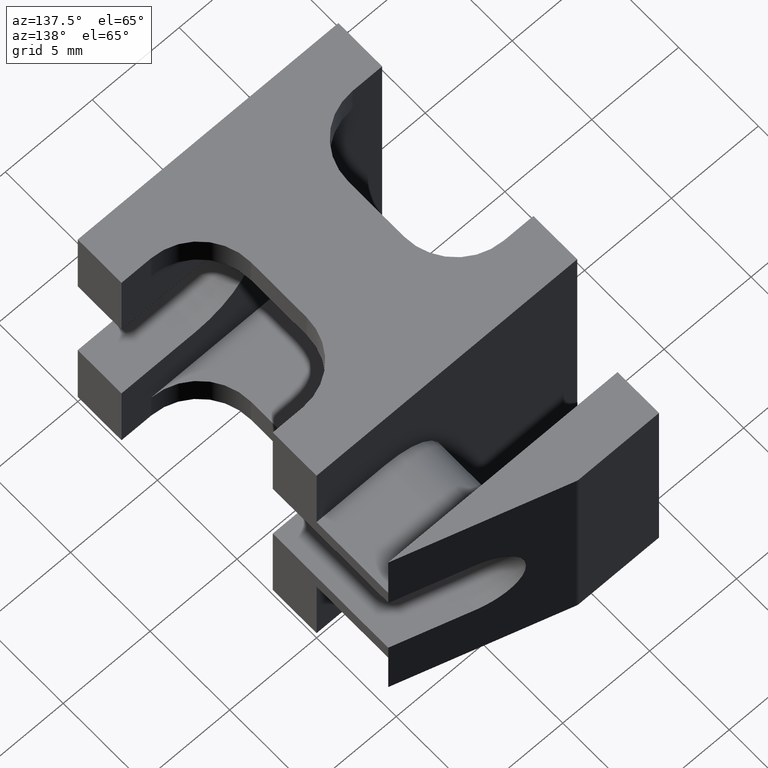
[diagram: clean part render]
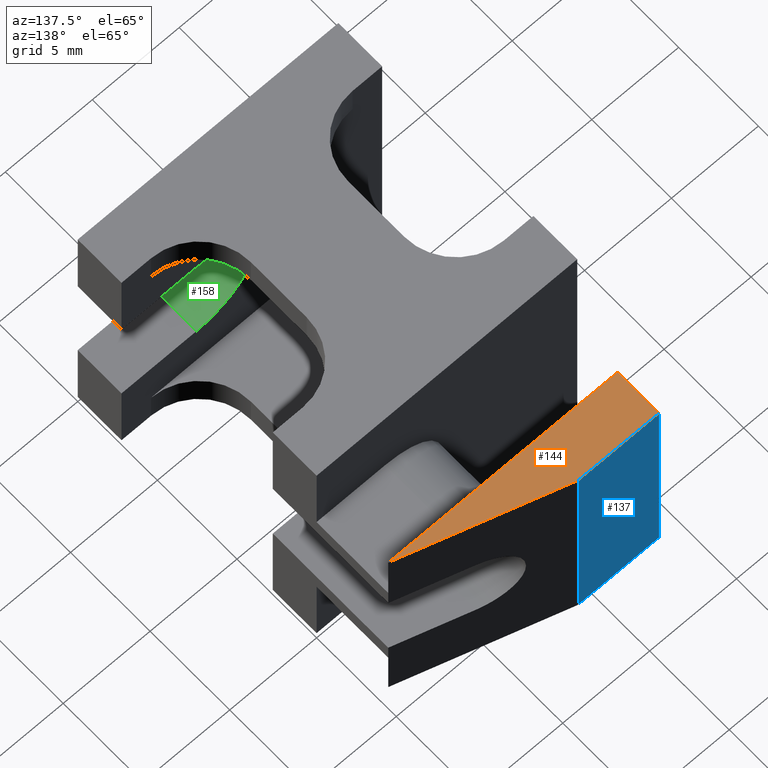
[diagram: same view with three faces highlighted in distinct colors, each labeled with its STEP entity id]
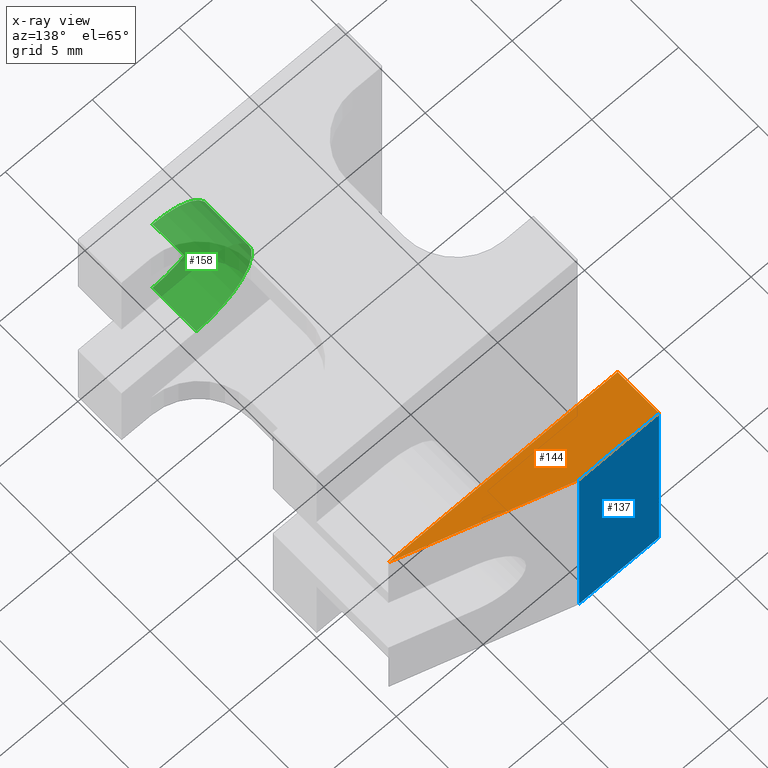
[diagram: x-ray of the same camera — body ghosted, the three highlighted faces saturated]
A machine part, auxiliary view with three faces highlighted in distinct colors.
The next image is the same camera in x-ray (body ghosted, the three faces saturated) — at least one of them is partly hidden behind the body in this view.
Their STEP definitions:

[orange] entity #144 — the highlighted planar face has unit normal (0, 0, 1).
#10 = EDGE_CURVE ( 'NONE', #729, #721, #779, .T. ) ;
#13 = EDGE_CURVE ( 'NONE', #729, #738, #799, .T. ) ;
#59 = EDGE_CURVE ( 'NONE', #700, #677, #940, .T. ) ;
#60 = EDGE_CURVE ( 'NONE', #738, #700, #1147, .T. ) ;
#114 = EDGE_CURVE ( 'NONE', #721, #677, #1097, .T. ) ;
#144 = ADVANCED_FACE ( 'NONE', ( #320 ), #290, .T. ) ;
#281 = DIRECTION ( 'NONE',  ( 1.000000000000000000, 0.0000000000000000000, -0.0000000000000000000 ) ) ;
#290 = PLANE ( 'NONE',  #1313 ) ;
#291 = DIRECTION ( 'NONE',  ( 0.0000000000000000000, 0.0000000000000000000, 1.000000000000000000 ) ) ;
#310 = CARTESIAN_POINT ( 'NONE',  ( 1.799999999999996000, 23.52439024390243500, 14.20000000000000100 ) ) ;
#320 = FACE_OUTER_BOUND ( 'NONE', #423, .T. ) ;
#423 = EDGE_LOOP ( 'NONE', ( #542, #504, #528, #531, #494 ) ) ;
#494 = ORIENTED_EDGE ( 'NONE', *, *, #10, .F. ) ;
#504 = ORIENTED_EDGE ( 'NONE', *, *, #60, .T. ) ;
#528 = ORIENTED_EDGE ( 'NONE', *, *, #59, .T. ) ;
#531 = ORIENTED_EDGE ( 'NONE', *, *, #114, .F. ) ;
#542 = ORIENTED_EDGE ( 'NONE', *, *, #13, .T. ) ;
#677 = VERTEX_POINT ( 'NONE', #1462 ) ;
#700 = VERTEX_POINT ( 'NONE', #1375 ) ;
#721 = VERTEX_POINT ( 'NONE', #1357 ) ;
#729 = VERTEX_POINT ( 'NONE', #1385 ) ;
#738 = VERTEX_POINT ( 'NONE', #1323 ) ;
#773 = DIRECTION ( 'NONE',  ( -1.000000000000000000, -0.0000000000000000000, -0.0000000000000000000 ) ) ;
#779 = LINE ( 'NONE', #780, #1115 ) ;
#780 = CARTESIAN_POINT ( 'NONE',  ( 14.99999999999999600, 19.50000000000000000, 14.20000000000000100 ) ) ;
#789 = CARTESIAN_POINT ( 'NONE',  ( 14.99999999999999600, 19.50000000000000000, 14.20000000000000100 ) ) ;
#793 = DIRECTION ( 'NONE',  ( -0.9565324958237141400, 0.2916257609218639300, 0.0000000000000000000 ) ) ;
#799 = LINE ( 'NONE', #789, #1116 ) ;
#940 = LINE ( 'NONE', #978, #1184 ) ;
#941 = DIRECTION ( 'NONE',  ( 0.0000000000000000000, 0.0000000000000000000, 1.000000000000000000 ) ) ;
#958 = CARTESIAN_POINT ( 'NONE',  ( 6.397473826388180700, 21.59999999999999800, 14.20000000000000100 ) ) ;
#968 = DIRECTION ( 'NONE',  ( 1.000000000000000000, 0.0000000000000000000, 0.0000000000000000000 ) ) ;
#974 = DIRECTION ( 'NONE',  ( -1.000000000000000000, 0.0000000000000000000, 0.0000000000000000000 ) ) ;
#978 = CARTESIAN_POINT ( 'NONE',  ( 1.799999999999996000, 22.09999999999999800, 14.20000000000000100 ) ) ;
#1077 = CARTESIAN_POINT ( 'NONE',  ( 1.799999999999996000, 19.50000000000000000, 14.20000000000000100 ) ) ;
#1097 = LINE ( 'NONE', #1077, #1212 ) ;
#1110 = DIRECTION ( 'NONE',  ( 0.0000000000000000000, 1.000000000000000000, -0.0000000000000000000 ) ) ;
#1115 = VECTOR ( 'NONE', #773, 1000.000000000000000 ) ;
#1116 = VECTOR ( 'NONE', #793, 1000.000000000000100 ) ;
#1147 = CIRCLE ( 'NONE', #1187, 0.5000000000000004400 ) ;
#1184 = VECTOR ( 'NONE', #974, 1000.000000000000000 ) ;
#1187 = AXIS2_PLACEMENT_3D ( 'NONE', #958, #941, #968 ) ;
#1212 = VECTOR ( 'NONE', #1110, 1000.000000000000000 ) ;
#1313 = AXIS2_PLACEMENT_3D ( 'NONE', #310, #291, #281 ) ;
#1323 = CARTESIAN_POINT ( 'NONE',  ( 6.543286706849112700, 22.07826624791185200, 14.20000000000000100 ) ) ;
#1357 = CARTESIAN_POINT ( 'NONE',  ( 1.799999999999996000, 19.50000000000000000, 14.19999999999999900 ) ) ;
#1375 = CARTESIAN_POINT ( 'NONE',  ( 6.397473826388180700, 22.09999999999999800, 14.20000000000000100 ) ) ;
#1385 = CARTESIAN_POINT ( 'NONE',  ( 14.99999999999999500, 19.50000000000000000, 14.19999999999999900 ) ) ;
#1462 = CARTESIAN_POINT ( 'NONE',  ( 1.799999999999996000, 22.09999999999999800, 14.20000000000000100 ) ) ;

[blue] entity #137 — the highlighted planar face has unit normal (0, 1, 0).
#1 = EDGE_CURVE ( 'NONE', #685, #684, #415, .T. ) ;
#33 = EDGE_CURVE ( 'NONE', #677, #684, #870, .T. ) ;
#52 = EDGE_CURVE ( 'NONE', #700, #685, #920, .T. ) ;
#59 = EDGE_CURVE ( 'NONE', #700, #677, #940, .T. ) ;
#137 = ADVANCED_FACE ( 'NONE', ( #255 ), #272, .T. ) ;
#241 = DIRECTION ( 'NONE',  ( 0.0000000000000000000, 1.000000000000000000, 0.0000000000000000000 ) ) ;
#255 = FACE_OUTER_BOUND ( 'NONE', #393, .T. ) ;
#270 = CARTESIAN_POINT ( 'NONE',  ( 1.799999999999996000, 22.09999999999999800, 1.700000000000000200 ) ) ;
#272 = PLANE ( 'NONE',  #1275 ) ;
#273 = DIRECTION ( 'NONE',  ( 0.0000000000000000000, -0.0000000000000000000, 1.000000000000000000 ) ) ;
#393 = EDGE_LOOP ( 'NONE', ( #427, #499, #467, #463 ) ) ;
#415 = LINE ( 'NONE', #763, #1136 ) ;
#427 = ORIENTED_EDGE ( 'NONE', *, *, #59, .F. ) ;
#463 = ORIENTED_EDGE ( 'NONE', *, *, #33, .F. ) ;
#467 = ORIENTED_EDGE ( 'NONE', *, *, #1, .T. ) ;
#499 = ORIENTED_EDGE ( 'NONE', *, *, #52, .T. ) ;
#677 = VERTEX_POINT ( 'NONE', #1462 ) ;
#684 = VERTEX_POINT ( 'NONE', #1470 ) ;
#685 = VERTEX_POINT ( 'NONE', #1460 ) ;
#700 = VERTEX_POINT ( 'NONE', #1375 ) ;
#763 = CARTESIAN_POINT ( 'NONE',  ( 1.799999999999996000, 22.09999999999999800, 1.700000000000000200 ) ) ;
#798 = DIRECTION ( 'NONE',  ( -1.000000000000000000, 0.0000000000000000000, 0.0000000000000000000 ) ) ;
#863 = DIRECTION ( 'NONE',  ( 0.0000000000000000000, 0.0000000000000000000, -1.000000000000000000 ) ) ;
#868 = CARTESIAN_POINT ( 'NONE',  ( 1.799999999999996000, 22.09999999999999800, 1.700000000000000200 ) ) ;
#870 = LINE ( 'NONE', #868, #1203 ) ;
#909 = CARTESIAN_POINT ( 'NONE',  ( 6.397473826388180700, 22.09999999999999800, 1.700000000000000200 ) ) ;
#920 = LINE ( 'NONE', #909, #1180 ) ;
#921 = DIRECTION ( 'NONE',  ( 0.0000000000000000000, 0.0000000000000000000, -1.000000000000000000 ) ) ;
#940 = LINE ( 'NONE', #978, #1184 ) ;
#974 = DIRECTION ( 'NONE',  ( -1.000000000000000000, 0.0000000000000000000, 0.0000000000000000000 ) ) ;
#978 = CARTESIAN_POINT ( 'NONE',  ( 1.799999999999996000, 22.09999999999999800, 14.20000000000000100 ) ) ;
#1136 = VECTOR ( 'NONE', #798, 1000.000000000000000 ) ;
#1180 = VECTOR ( 'NONE', #921, 1000.000000000000000 ) ;
#1184 = VECTOR ( 'NONE', #974, 1000.000000000000000 ) ;
#1203 = VECTOR ( 'NONE', #863, 1000.000000000000000 ) ;
#1275 = AXIS2_PLACEMENT_3D ( 'NONE', #270, #241, #273 ) ;
#1375 = CARTESIAN_POINT ( 'NONE',  ( 6.397473826388180700, 22.09999999999999800, 14.20000000000000100 ) ) ;
#1460 = CARTESIAN_POINT ( 'NONE',  ( 6.397473826388180700, 22.09999999999999800, 1.700000000000000200 ) ) ;
#1462 = CARTESIAN_POINT ( 'NONE',  ( 1.799999999999996000, 22.09999999999999800, 14.20000000000000100 ) ) ;
#1470 = CARTESIAN_POINT ( 'NONE',  ( 1.799999999999996000, 22.09999999999999800, 1.700000000000000200 ) ) ;

[green] entity #158 — the highlighted cylindrical surface (partial cylindrical patch) has radius 3.2 mm, axis along (-0, -1, -0).
#2 = EDGE_CURVE ( 'NONE', #755, #695, #1139, .T. ) ;
#3 = EDGE_CURVE ( 'NONE', #761, #757, #1145, .T. ) ;
#48 = EDGE_CURVE ( 'NONE', #695, #761, #929, .T. ) ;
#51 = EDGE_CURVE ( 'NONE', #755, #757, #935, .T. ) ;
#158 = ADVANCED_FACE ( 'NONE', ( #336 ), #371, .F. ) ;
#335 = DIRECTION ( 'NONE',  ( -0.0000000000000000000, -1.000000000000000000, -0.0000000000000000000 ) ) ;
#336 = FACE_OUTER_BOUND ( 'NONE', #409, .T. ) ;
#371 = CYLINDRICAL_SURFACE ( 'NONE', #1296, 3.199999999999999700 ) ;
#375 = CARTESIAN_POINT ( 'NONE',  ( 10.69999999999999600, 12.60951317256587600, 7.900000000000002100 ) ) ;
#380 = DIRECTION ( 'NONE',  ( 0.0000000000000000000, 0.0000000000000000000, -1.000000000000000000 ) ) ;
#409 = EDGE_LOOP ( 'NONE', ( #508, #468, #517, #456 ) ) ;
#456 = ORIENTED_EDGE ( 'NONE', *, *, #3, .T. ) ;
#468 = ORIENTED_EDGE ( 'NONE', *, *, #2, .T. ) ;
#508 = ORIENTED_EDGE ( 'NONE', *, *, #51, .F. ) ;
#517 = ORIENTED_EDGE ( 'NONE', *, *, #48, .T. ) ;
#695 = VERTEX_POINT ( 'NONE', #1467 ) ;
#755 = VERTEX_POINT ( 'NONE', #1371 ) ;
#757 = VERTEX_POINT ( 'NONE', #1339 ) ;
#761 = VERTEX_POINT ( 'NONE', #1344 ) ;
#770 = CARTESIAN_POINT ( 'NONE',  ( 10.69999999999999600, 2.750000000000000900, 7.900000000000002100 ) ) ;
#774 = DIRECTION ( 'NONE',  ( 0.0000000000000000000, 0.0000000000000000000, -1.000000000000000000 ) ) ;
#778 = DIRECTION ( 'NONE',  ( -0.0000000000000000000, -1.000000000000000000, -0.0000000000000000000 ) ) ;
#792 = DIRECTION ( 'NONE',  ( 0.0000000000000000000, 1.000000000000000000, 0.0000000000000000000 ) ) ;
#800 = DIRECTION ( 'NONE',  ( 0.0000000000000000000, 0.0000000000000000000, -1.000000000000000000 ) ) ;
#816 = CARTESIAN_POINT ( 'NONE',  ( 10.69999999999999600, 0.0000000000000000000, 7.900000000000002100 ) ) ;
#906 = CARTESIAN_POINT ( 'NONE',  ( 10.69999999999999600, 12.60951317256587600, 4.700000000000002000 ) ) ;
#915 = CARTESIAN_POINT ( 'NONE',  ( 10.69999999999999600, 12.60951317256587600, 11.10000000000000100 ) ) ;
#918 = DIRECTION ( 'NONE',  ( 0.0000000000000000000, 1.000000000000000000, 0.0000000000000000000 ) ) ;
#929 = LINE ( 'NONE', #906, #1201 ) ;
#935 = LINE ( 'NONE', #915, #1175 ) ;
#936 = DIRECTION ( 'NONE',  ( 0.0000000000000000000, 1.000000000000000000, 0.0000000000000000000 ) ) ;
#1137 = AXIS2_PLACEMENT_3D ( 'NONE', #816, #778, #800 ) ;
#1139 = CIRCLE ( 'NONE', #1137, 3.199999999999999700 ) ;
#1141 = AXIS2_PLACEMENT_3D ( 'NONE', #770, #792, #774 ) ;
#1145 = CIRCLE ( 'NONE', #1141, 3.199999999999999700 ) ;
#1175 = VECTOR ( 'NONE', #936, 1000.000000000000000 ) ;
#1201 = VECTOR ( 'NONE', #918, 1000.000000000000000 ) ;
#1296 = AXIS2_PLACEMENT_3D ( 'NONE', #375, #335, #380 ) ;
#1339 = CARTESIAN_POINT ( 'NONE',  ( 10.69999999999999600, 2.750000000000000900, 11.10000000000000100 ) ) ;
#1344 = CARTESIAN_POINT ( 'NONE',  ( 10.69999999999999600, 2.750000000000000900, 4.700000000000002800 ) ) ;
#1371 = CARTESIAN_POINT ( 'NONE',  ( 10.69999999999999600, 0.0000000000000000000, 11.10000000000000100 ) ) ;
#1467 = CARTESIAN_POINT ( 'NONE',  ( 10.69999999999999600, 0.0000000000000000000, 4.700000000000002800 ) ) ;